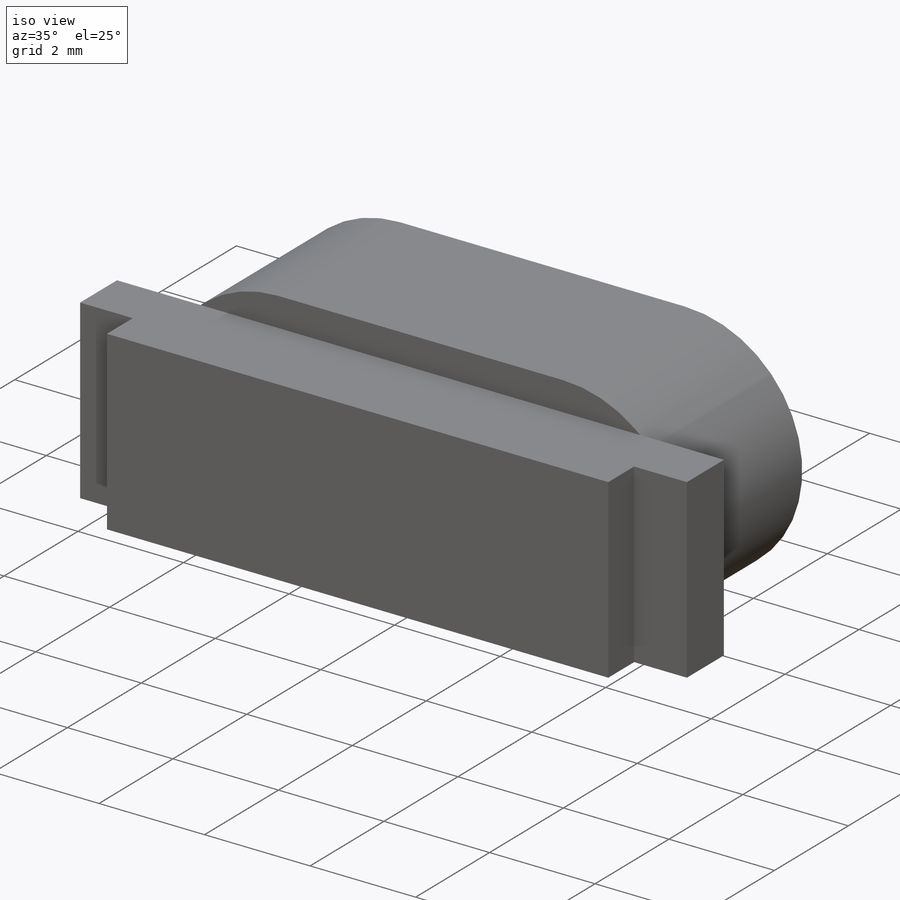
[diagram: iso view]
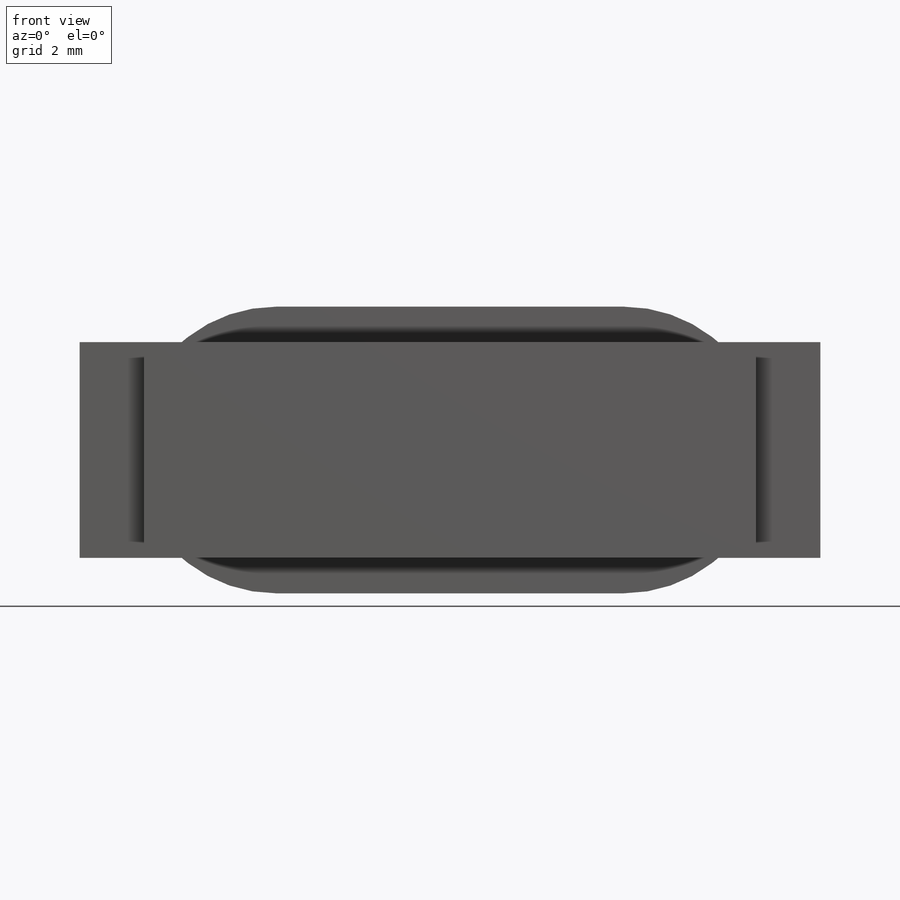
[diagram: front view]
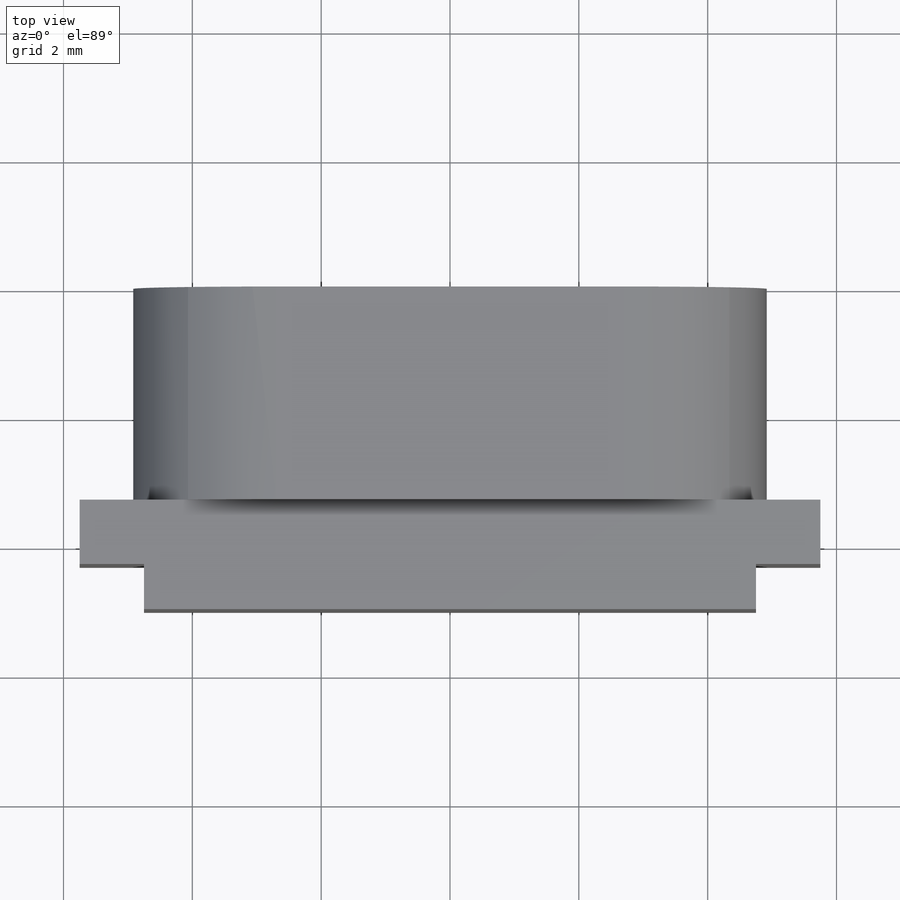
[diagram: top view]
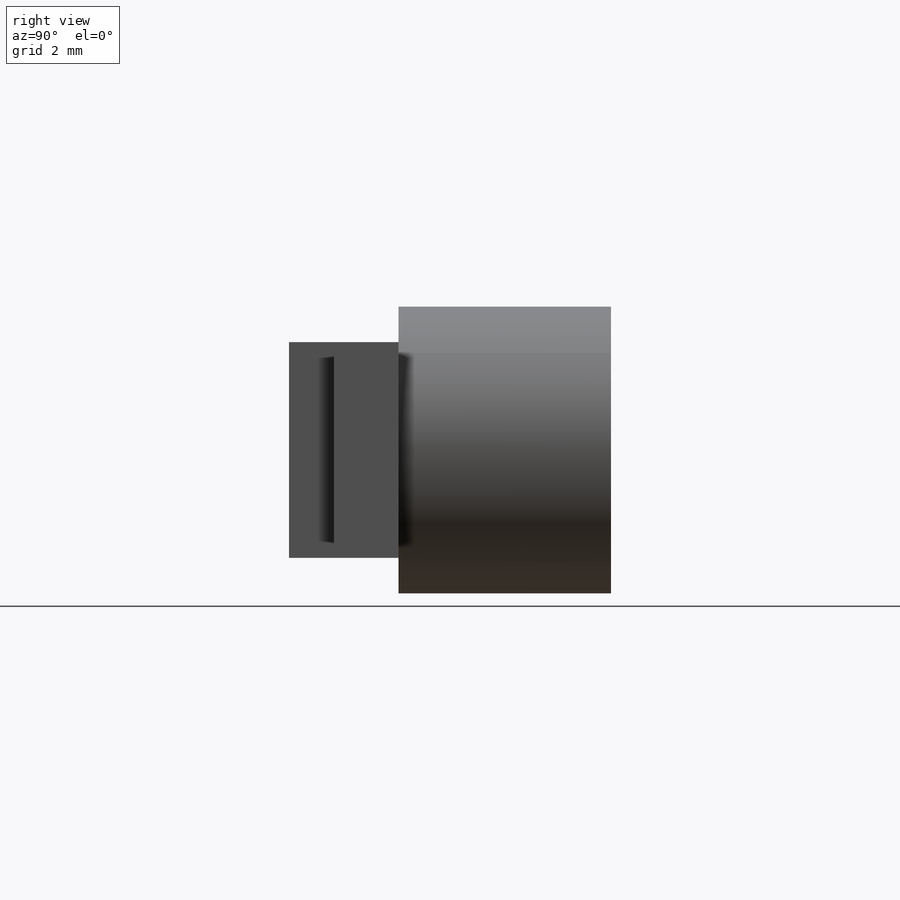
[diagram: right view]
SOLIDWORKS PART (.sldprt)
format: sldprt  version: not decoded by parser v0  size: 170,496 bytes
history: native  units: mm
features: plane x3, sketch x3, extrude x3, material x1 (+10 scaffold rows collapsed)
feature tree (20):
  scaffold x10  (default folders/planes/origin — collapsed)
  material  "Matériau <non spécifié>"
  plane  "Plan de face"
  plane  "Plan de dessus"
  plane  "Plan de droite"
  sketch  "Esquisse3"  dims[c1.D1=~25.750678mm c2.D1=9.85mm c2.D2=4.45mm]
  extrude  "Boss.-Extru.1"  Depth=3.3mm
  sketch  "Esquisse4"  dims[D1=11.5mm D2=3.35mm]
  extrude  "Boss.-Extru.2"  Depth=1mm
  sketch  "Esquisse5"  dims[D1=1.0mm]
  extrude  "Boss.-Extru.3"  Depth=0.7mm
decode coverage: 6 of 6 modeling features carry decoded parameters
note: ~ marks probable driven/reference dimensions
note: suppression state not decoded; provenance and decode notes live in map.json
